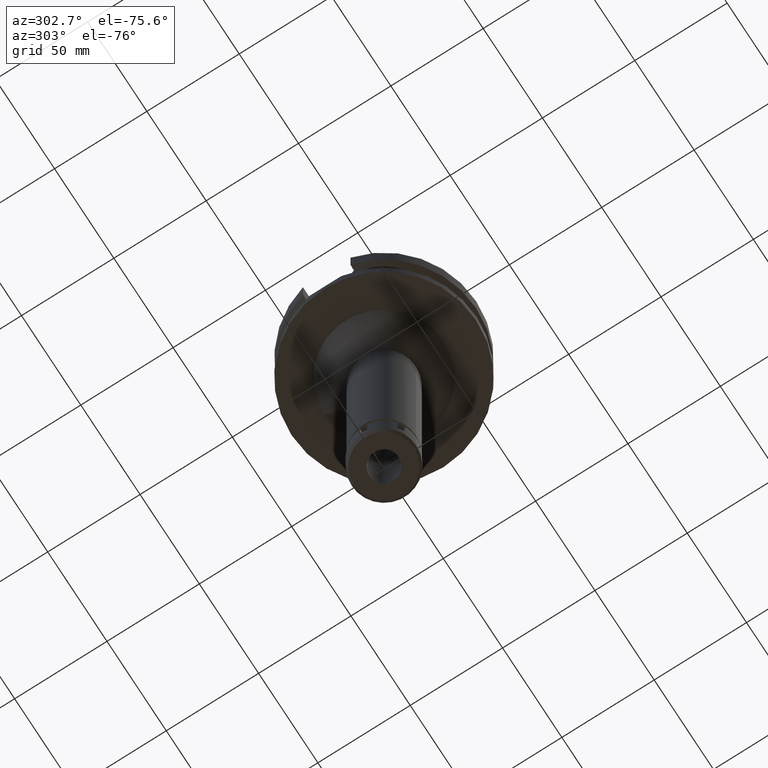
[diagram: clean part render]
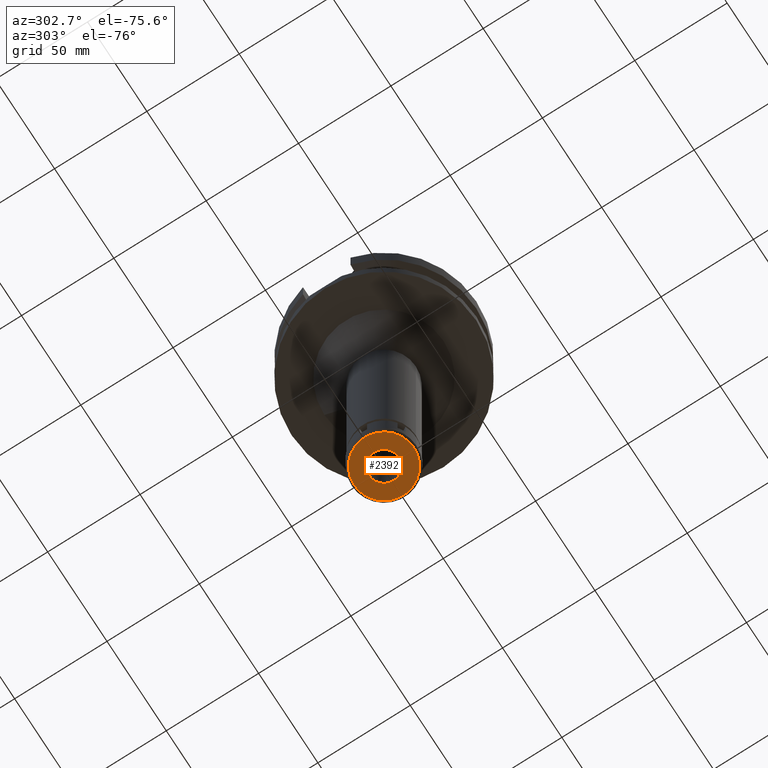
[diagram: same view with one face highlighted and labeled with its STEP entity id]
A machine part, auxiliary view. The second image highlights one B-rep face of the part: STEP entity #2392.
In plain terms, the highlighted planar face has unit normal (0, 0, -1).
Its self-contained STEP definition (entity closure, byte-faithful):
#65 = EDGE_CURVE ( 'NONE', #1765, #1336, #1881, .T. ) ;
#93 = EDGE_CURVE ( 'NONE', #1336, #1765, #3201, .T. ) ;
#241 = CIRCLE ( 'NONE', #1418, 8.000000000000000000 ) ;
#405 = CARTESIAN_POINT ( 'NONE',  ( 0.0000000000000000000, 8.000000000000000000, -16.00000000000000000 ) ) ;
#449 = DIRECTION ( 'NONE',  ( 0.0000000000000000000, 1.000000000000000000, 0.0000000000000000000 ) ) ;
#697 = CIRCLE ( 'NONE', #3272, 8.000000000000000000 ) ;
#723 = DIRECTION ( 'NONE',  ( 0.0000000000000000000, 0.0000000000000000000, -1.000000000000000000 ) ) ;
#807 = CARTESIAN_POINT ( 'NONE',  ( 0.0000000000000000000, 0.0000000000000000000, -16.00000000000000000 ) ) ;
#892 = ORIENTED_EDGE ( 'NONE', *, *, #65, .F. ) ;
#969 = DIRECTION ( 'NONE',  ( 0.0000000000000000000, -1.000000000000000000, 0.0000000000000000000 ) ) ;
#1045 = CARTESIAN_POINT ( 'NONE',  ( 0.0000000000000000000, 16.25000000000000000, -16.00000000000000000 ) ) ;
#1127 = CARTESIAN_POINT ( 'NONE',  ( 0.0000000000000000000, -8.000000000000000000, -16.00000000000000000 ) ) ;
#1132 = PLANE ( 'NONE',  #2655 ) ;
#1336 = VERTEX_POINT ( 'NONE', #1648 ) ;
#1407 = FACE_OUTER_BOUND ( 'NONE', #3420, .T. ) ;
#1418 = AXIS2_PLACEMENT_3D ( 'NONE', #2730, #2447, #1608 ) ;
#1430 = VERTEX_POINT ( 'NONE', #1127 ) ;
#1581 = AXIS2_PLACEMENT_3D ( 'NONE', #2133, #3305, #1839 ) ;
#1608 = DIRECTION ( 'NONE',  ( 0.0000000000000000000, 1.000000000000000000, 0.0000000000000000000 ) ) ;
#1648 = CARTESIAN_POINT ( 'NONE',  ( 0.0000000000000000000, -16.25000000000000000, -16.00000000000000000 ) ) ;
#1697 = EDGE_CURVE ( 'NONE', #1430, #2923, #697, .T. ) ;
#1765 = VERTEX_POINT ( 'NONE', #1045 ) ;
#1839 = DIRECTION ( 'NONE',  ( 0.0000000000000000000, -1.000000000000000000, 0.0000000000000000000 ) ) ;
#1881 = CIRCLE ( 'NONE', #2657, 16.25000000000000000 ) ;
#1896 = EDGE_LOOP ( 'NONE', ( #2273, #2404 ) ) ;
#2133 = CARTESIAN_POINT ( 'NONE',  ( 0.0000000000000000000, 0.0000000000000000000, -16.00000000000000000 ) ) ;
#2273 = ORIENTED_EDGE ( 'NONE', *, *, #3428, .F. ) ;
#2314 = FACE_BOUND ( 'NONE', #1896, .T. ) ;
#2392 = ADVANCED_FACE ( 'NONE', ( #1407, #2314 ), #1132, .T. ) ;
#2404 = ORIENTED_EDGE ( 'NONE', *, *, #1697, .F. ) ;
#2447 = DIRECTION ( 'NONE',  ( 0.0000000000000000000, 0.0000000000000000000, -1.000000000000000000 ) ) ;
#2570 = DIRECTION ( 'NONE',  ( 0.0000000000000000000, -1.000000000000000000, 0.0000000000000000000 ) ) ;
#2593 = ORIENTED_EDGE ( 'NONE', *, *, #93, .F. ) ;
#2655 = AXIS2_PLACEMENT_3D ( 'NONE', #807, #3110, #2570 ) ;
#2657 = AXIS2_PLACEMENT_3D ( 'NONE', #3585, #3246, #449 ) ;
#2730 = CARTESIAN_POINT ( 'NONE',  ( 0.0000000000000000000, 0.0000000000000000000, -16.00000000000000000 ) ) ;
#2923 = VERTEX_POINT ( 'NONE', #405 ) ;
#3110 = DIRECTION ( 'NONE',  ( 0.0000000000000000000, 0.0000000000000000000, -1.000000000000000000 ) ) ;
#3201 = CIRCLE ( 'NONE', #1581, 16.25000000000000000 ) ;
#3246 = DIRECTION ( 'NONE',  ( 0.0000000000000000000, 0.0000000000000000000, 1.000000000000000000 ) ) ;
#3272 = AXIS2_PLACEMENT_3D ( 'NONE', #3292, #723, #969 ) ;
#3292 = CARTESIAN_POINT ( 'NONE',  ( 0.0000000000000000000, 0.0000000000000000000, -16.00000000000000000 ) ) ;
#3305 = DIRECTION ( 'NONE',  ( 0.0000000000000000000, 0.0000000000000000000, 1.000000000000000000 ) ) ;
#3420 = EDGE_LOOP ( 'NONE', ( #892, #2593 ) ) ;
#3428 = EDGE_CURVE ( 'NONE', #2923, #1430, #241, .T. ) ;
#3585 = CARTESIAN_POINT ( 'NONE',  ( 0.0000000000000000000, 0.0000000000000000000, -16.00000000000000000 ) ) ;